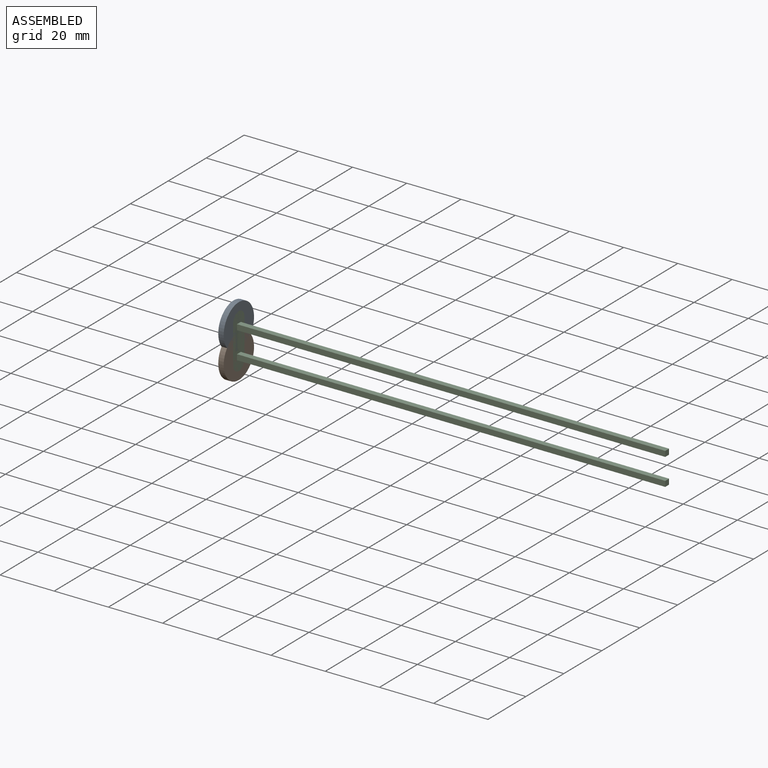
[diagram: assembled view]
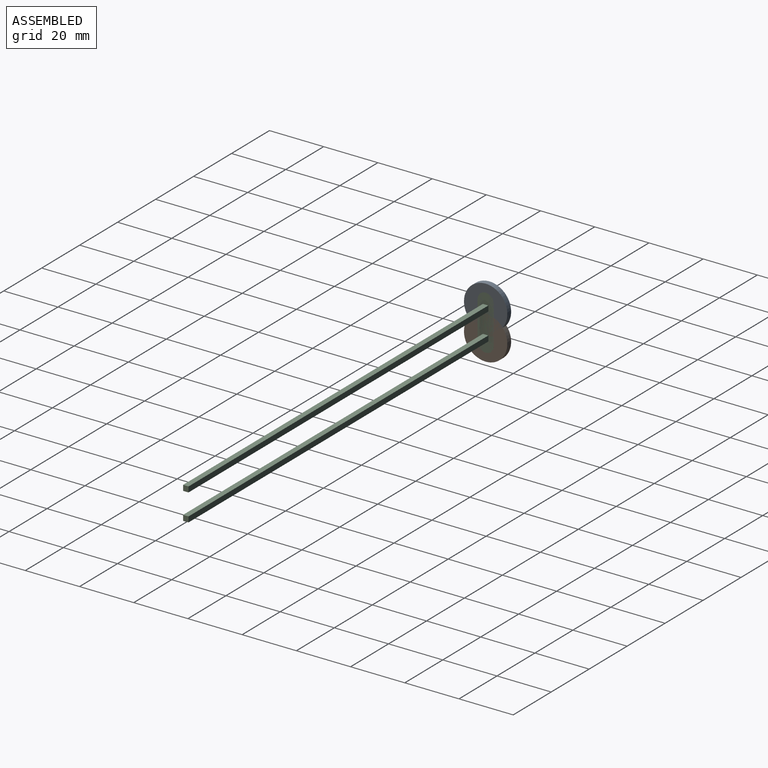
[diagram: assembled view, second angle]
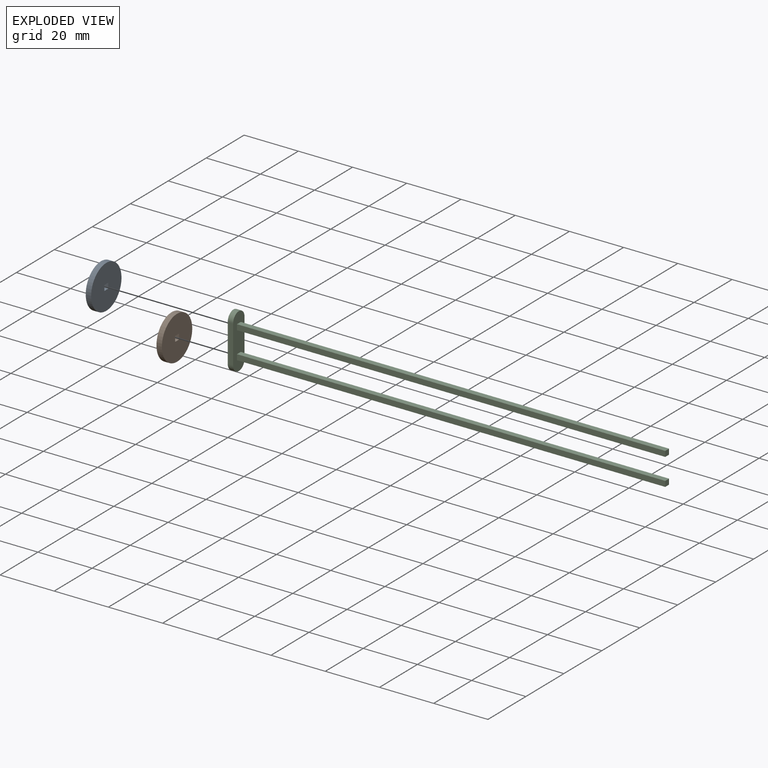
[diagram: exploded view]
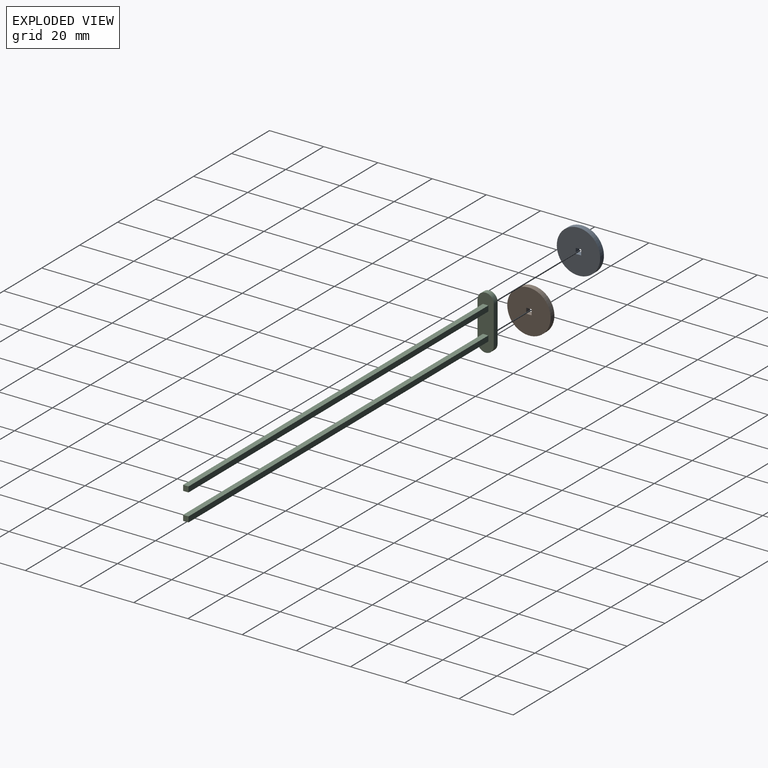
[diagram: exploded view, second angle]
ASSEMBLY  parts=3 mates=2
PART A: 7 faces, bbox 2x16x16 mm
  f0: plane 2x2mm, normal (0,-1,0), area 4mm2, adj f1,f3,f5,f6
  f1: plane 2x2mm, normal (0,0,1), area 4mm2, adj f0,f2,f5,f6
  f2: plane 2x2mm, normal (0,1,0), area 4mm2, adj f1,f3,f5,f6
  f3: plane 2x2mm, normal (0,0,-1), area 4mm2, adj f0,f2,f5,f6
  f4: cylinder r=8mm len=16mm, axis (-1,0,0), area 100.5mm2, adj f5,f6
  f5: plane 16x16mm, normal (1,0,0), area 197.1mm2, adj f0,f1,f2,f3,f4
  f6: plane 16x16mm, normal (-1,0,0), area 197.1mm2, adj f0,f1,f2,f3,f4
PART B: same geometry as A
PART C: 16 faces, bbox 160x20x6 mm
  f0: cylinder r=3mm len=6mm, axis (-1,0,0), area 18.8mm2, adj f1,f3,f4,f5
  f1: plane 14x2mm, normal (0,0,1), area 28mm2, adj f0,f2,f4,f5
  f2: cylinder r=3mm len=6mm, axis (-1,0,0), area 18.8mm2, adj f1,f3,f4,f5
  f3: plane 14x2mm, normal (0,0,-1), area 28mm2, adj f0,f2,f4,f5
  f4: plane 20x6mm, normal (1,0,0), area 104.3mm2, adj f0,f1,f2,f3,f6,f7,f8,f9
  f5: plane 20x6mm, normal (-1,0,0), area 112.3mm2, adj f0,f1,f2,f3
  f6: plane 158x2mm, normal (0,0,-1), area 316mm2, adj f4,f7,f9,f10
  f7: plane 158x2mm, normal (0,1,0), area 316mm2, adj f4,f6,f8,f10
  f8: plane 158x2mm, normal (0,0,1), area 316mm2, adj f4,f7,f9,f10
  f9: plane 158x2mm, normal (0,-1,0), area 316mm2, adj f4,f6,f8,f10
  f10: plane 2x2mm, normal (1,0,0), area 4mm2, adj f6,f7,f8,f9
  f11: plane 158x2mm, normal (0,0,1), area 316mm2, adj f4,f12,f14,f15
  f12: plane 158x2mm, normal (0,-1,0), area 316mm2, adj f4,f11,f13,f15
  f13: plane 158x2mm, normal (0,0,-1), area 316mm2, adj f4,f12,f14,f15
  f14: plane 158x2mm, normal (0,1,0), area 316mm2, adj f4,f11,f13,f15
  f15: plane 2x2mm, normal (1,0,0), area 4mm2, adj f11,f12,f13,f14
PLACE A rot(axis=(-1,0,0),90deg) t=(-79.83,-8.68,-99.69)mm
PLACE B rot(axis=(-1,0,0),90deg) t=(-79.83,-8.68,-109.69)mm
PLACE C rot(axis=(-1,0,0),90deg) t=(-79.83,-8.68,-128.22)mm fixed
MATE slider C.f4 <-> B.f5  axis (-1,0,0) through (-77.83,-9.68,-132.22)mm
MATE slider C.f4 <-> A.f5  axis (-1,0,0) through (-77.83,-9.68,-122.22)mm
